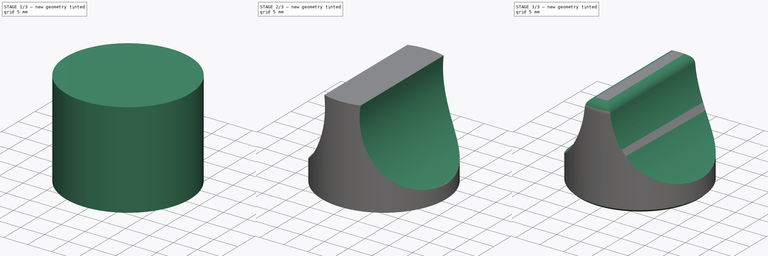
[diagram: build sequence overview — one tinted view per stage of 3, left to right]
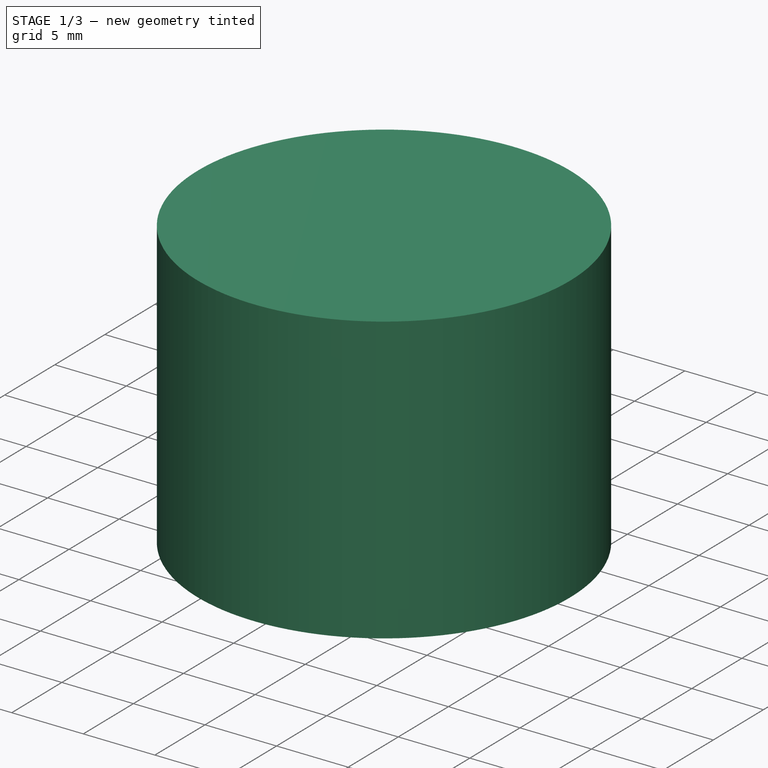
[diagram: stage 1 of 3 — iso view after this stage's code; geometry added in this stage tinted green]
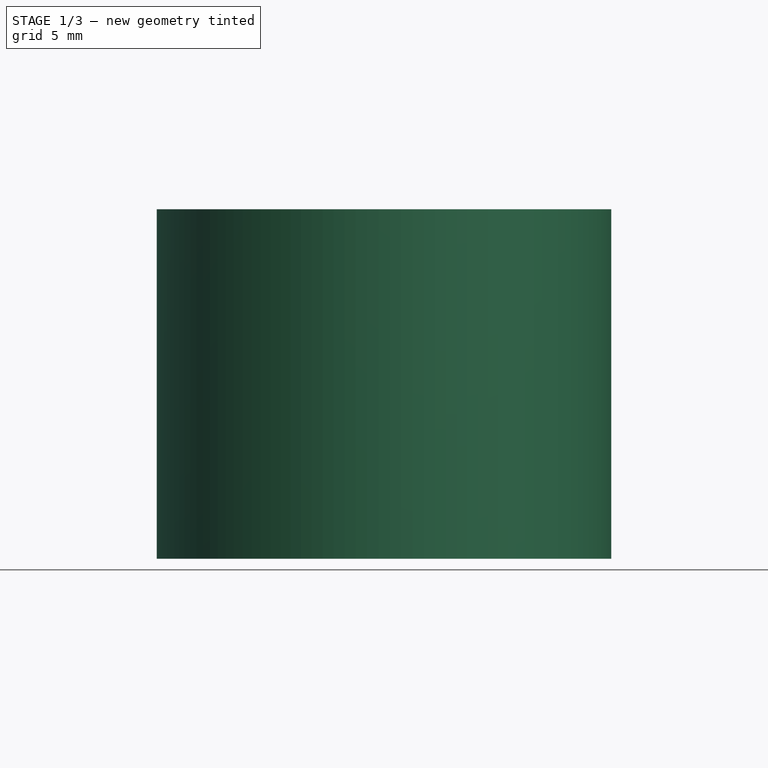
[diagram: stage 1 of 3 — front view after this stage's code; geometry added in this stage tinted green]
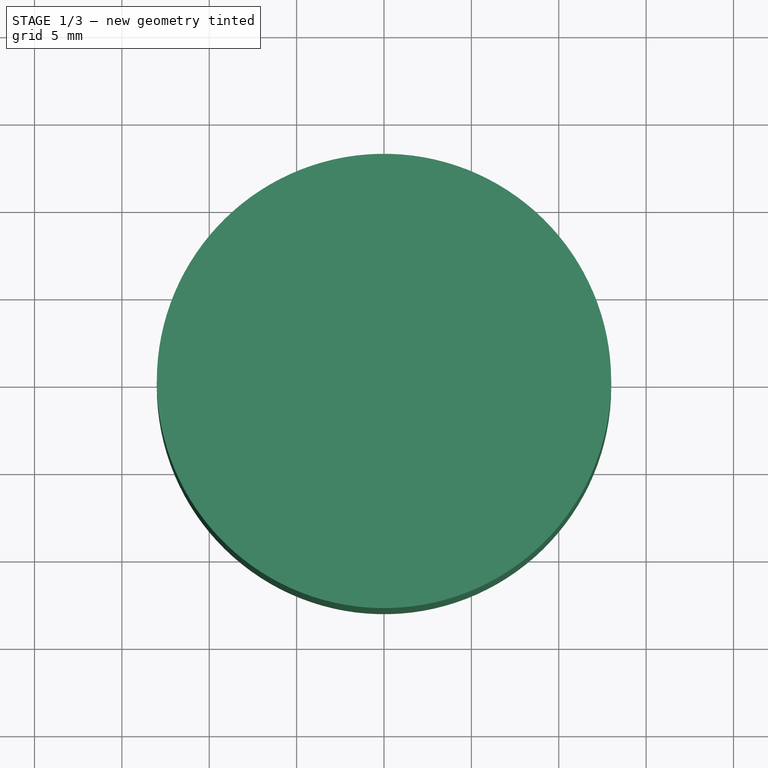
[diagram: stage 1 of 3 — top view after this stage's code; geometry added in this stage tinted green]
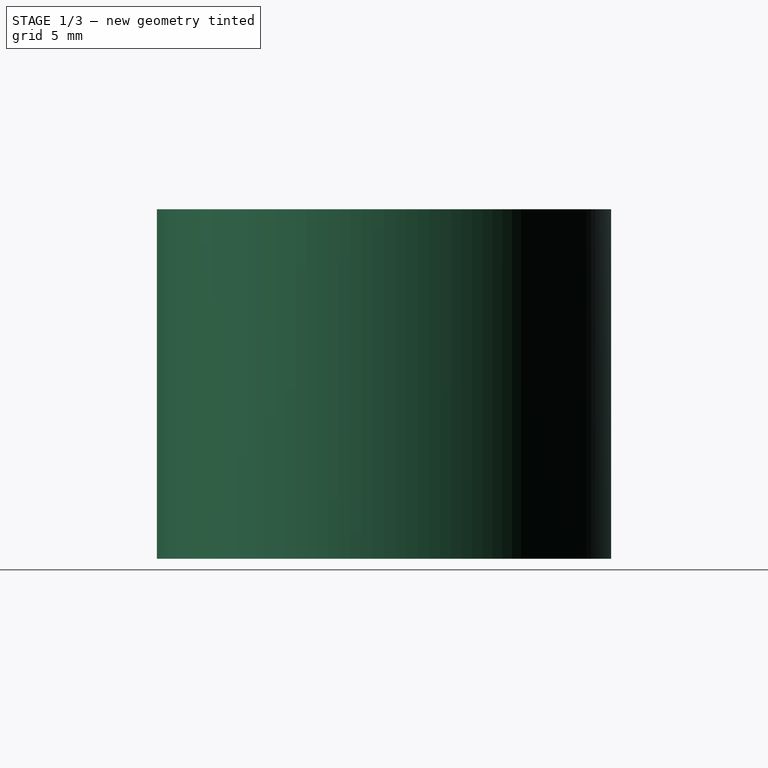
[diagram: stage 1 of 3 — right view after this stage's code; geometry added in this stage tinted green]
FCSTD DOCUMENT  (FreeCAD 2024.1R35694 (Git))
Label: vent hood knobs
License: All rights reserved
LicenseURL: http://en.wikipedia.org/wiki/All_rights_reserved
objects: Sketcher::SketchObject×3, PartDesign::Pocket×2, PartDesign::Pad×1, PartDesign::Fillet×1, PartDesign::Chamfer×1, PartDesign::Body×1
note: 14 computed .brp shape members not serialized (recipe doc carries the construction recipe); baked Part::Feature solids carry a one-line shape summary decoded from their .brp

FEATURE [Sketcher::SketchObject] Sketch
  FullyConstrained = true
  MapMode = 5
  Support = -> [XY_Plane]
  sketch-geometry (1):
    g0: Circle CenterX=0 CenterY=0 CenterZ=0 NormalX=0 NormalY=0 NormalZ=1 AngleXU=0 Radius=13
  constraints (2):
    c: Coincident(g0,g-1)
    c: Diameter(g0) = 26
FEATURE [PartDesign::Pad] Pad
  Direction = (0,0,1)
  Length = 20
  Length2 = 10
  Profile = -> Sketch
  ReferenceAxis = -> Sketch [N_Axis]
  Refine = true
  Type = 0
FEATURE [Sketcher::SketchObject] Sketch001
  FullyConstrained = true
  MapMode = 5
  Placement = pos=(0,0,0) rot=(0,1,0;3.14159rad)
  Support = -> [XY_Plane]
  sketch-geometry (23):
    g0: ArcOfCircle CenterX=0 CenterY=0 CenterZ=0 NormalX=0 NormalY=0 NormalZ=1 AngleXU=0 Radius=3.225 StartAngle=0.755909 EndAngle=2.38568
    g1: GeomPoint X=0 Y=-3.225 Z=0
    g2: GeomPoint X=-3.10403 Y=0.875 Z=0
    g3: GeomPoint X=3.10403 Y=0.875 Z=0
    g4: LineSegment StartX=-0.4 StartY=0.675 StartZ=0 EndX=0.4 EndY=0.675 EndZ=0
    g5: GeomPoint X=0 Y=0.675 Z=0
    g6: LineSegment StartX=0.614752 StartY=0.690884 StartZ=0 EndX=3.10403 EndY=0.875 EndZ=0
    g7: LineSegment StartX=-0.614752 StartY=0.690884 StartZ=0 EndX=-3.10403 EndY=0.875 EndZ=0
    g8: LineSegment StartX=0.4 StartY=0.890339 StartZ=0 EndX=0.4 EndY=1.675 EndZ=0
    g9: LineSegment StartX=0.6 StartY=1.875 StartZ=0 EndX=2.20114 EndY=1.875 EndZ=0
    g10: LineSegment StartX=-0.4 StartY=0.890339 StartZ=0 EndX=-0.4 EndY=1.675 EndZ=0
    g11: LineSegment StartX=-0.6 StartY=1.875 StartZ=0 EndX=-2.20114 EndY=1.875 EndZ=0
    g12: ArcOfCircle CenterX=0 CenterY=0 CenterZ=0 NormalX=0 NormalY=0 NormalZ=1 AngleXU=0 Radius=3.225 StartAngle=2.86683 EndAngle=6.55795
    g13: ArcOfCircle CenterX=-0.6 CenterY=0.890339 CenterZ=0 NormalX=0 NormalY=0 NormalZ=1 AngleXU=0 Radius=0.2 StartAngle=4.63856 EndAngle=6.28319
    g14: GeomPoint X=-0.4 Y=0.675 Z=0
    g15: ArcOfCircle CenterX=-0.6 CenterY=1.675 CenterZ=0 NormalX=0 NormalY=0 NormalZ=1 AngleXU=0 Radius=0.2 StartAngle=0 EndAngle=1.5708
    g16: GeomPoint X=-0.4 Y=1.875 Z=0
    g17: ArcOfCircle CenterX=0.6 CenterY=1.675 CenterZ=0 NormalX=0 NormalY=0 NormalZ=1 AngleXU=0 Radius=0.2 StartAngle=1.5708 EndAngle=3.14159
    g18: GeomPoint X=0.4 Y=1.875 Z=0
    g19: ArcOfCircle CenterX=0.6 CenterY=0.890339 CenterZ=0 NormalX=0 NormalY=0 NormalZ=1 AngleXU=0 Radius=0.2 StartAngle=3.14159 EndAngle=4.78622
    g20: GeomPoint X=0.4 Y=0.675 Z=0
    g21: ArcOfCircle CenterX=2.20114 CenterY=2.075 CenterZ=0 NormalX=0 NormalY=0 NormalZ=1 AngleXU=0 Radius=0.2 StartAngle=4.71239 EndAngle=7.03909
    g22: ArcOfCircle CenterX=-2.20114 CenterY=2.075 CenterZ=0 NormalX=0 NormalY=0 NormalZ=1 AngleXU=0 Radius=0.2 StartAngle=2.38568 EndAngle=4.71239
  constraints (52):
    c: PointOnObject(g1,g0)
    c: Vertical(g0,g1)
    c: PointOnObject(g2,g0)
    c: Horizontal(g3,g2)
    c: DistanceY(g1,g2) = 4.1
    c: Horizontal(g4)
    c: DistanceY(g1,g4) = 3.9
    c: Symmetric(g4,g4,g5)
    c: Vertical(g5,g0)
    c: DistanceX(g4,g4) = 0.8
    c: Coincident(g20,g4)
    c: Coincident(g6,g3)
    c: Coincident(g14,g4)
    c: Coincident(g7,g2)
    c: Vertical(g8)
    c: Horizontal(g9)
    c: Vertical(g10)
    c: Horizontal(g11)
    c: Horizontal(g16,g18)
    c: DistanceY(g20,g18) = 1.2
    c: Coincident(g12,g6)
    c: Equal(g0,g12)
    c: PointOnObject(g12,g7)
    c: Coincident(g0,g12)
    c: Diameter(g12) = 6.45
    c: PointOnObject(g14,g7)
    c: PointOnObject(g14,g10)
    c: Tangent(g7,g13) = 1.5708
    c: Tangent(g10,g13) = -1.5708
    c: PointOnObject(g16,g10)
    c: PointOnObject(g16,g11)
    c: Tangent(g10,g15) = -1.5708
    c: Tangent(g11,g15) = -1.5708
    c: PointOnObject(g18,g9)
    c: PointOnObject(g18,g8)
    c: Tangent(g9,g17) = 1.5708
    c: Tangent(g8,g17) = 1.5708
    c: PointOnObject(g20,g8)
    c: PointOnObject(g20,g6)
    c: Tangent(g8,g19) = 1.5708
    c: Tangent(g6,g19) = -1.5708
    c: Tangent(g9,g21) = -1.5708
    c: Tangent(g0,g21) = -1.5708
    c: Tangent(g11,g22) = 1.5708
    c: Tangent(g0,g22) = -1.5708
    c: Radius(g21) = 0.2
    c: Equal(g21,g22)
    c: Equal(g22,g15)
    c: Equal(g15,g17)
    c: Equal(g13,g15)
    c: Equal(g13,g19)
    c: Coincident(g0,g-1)
FEATURE [PartDesign::Pocket] Pocket
  BaseFeature = -> Pad
  Direction = (0,0,1)
  Length = 15
  Length2 = 5
  Profile = -> Sketch001
  ReferenceAxis = -> Sketch001 [N_Axis]
  Refine = true
  Type = 0
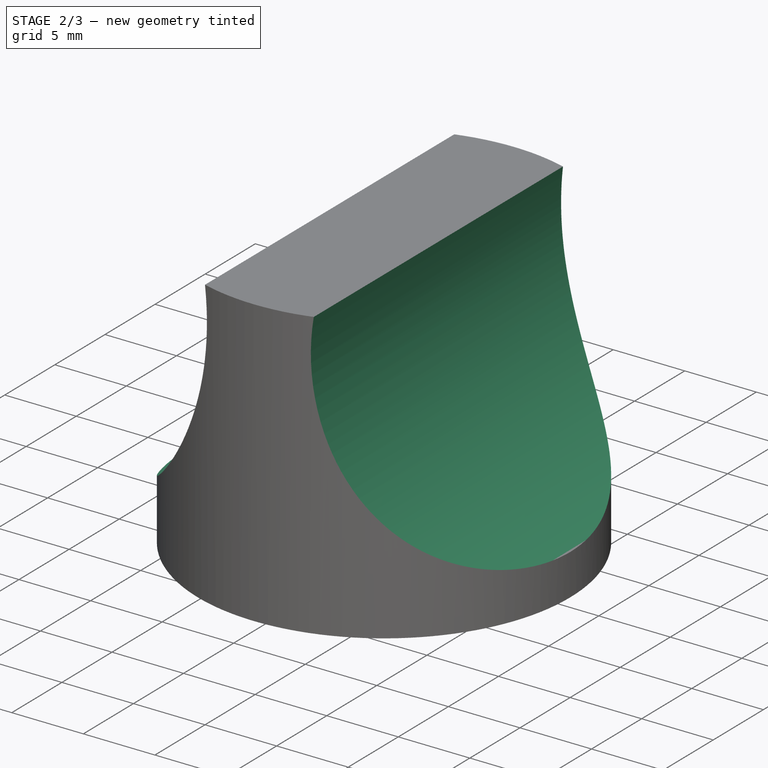
[diagram: stage 2 of 3 — iso view after this stage's code; geometry added in this stage tinted green]
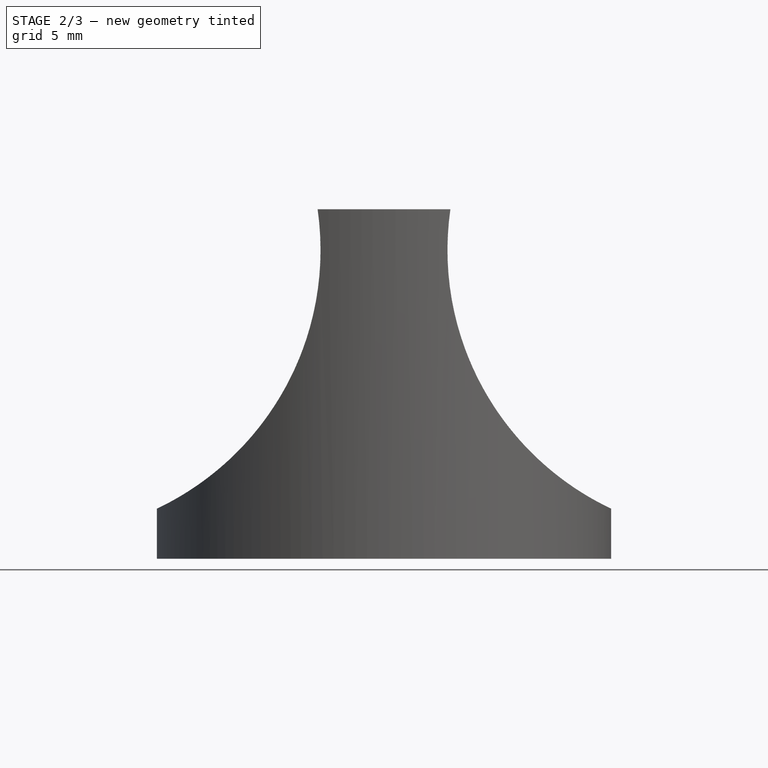
[diagram: stage 2 of 3 — front view after this stage's code; geometry added in this stage tinted green]
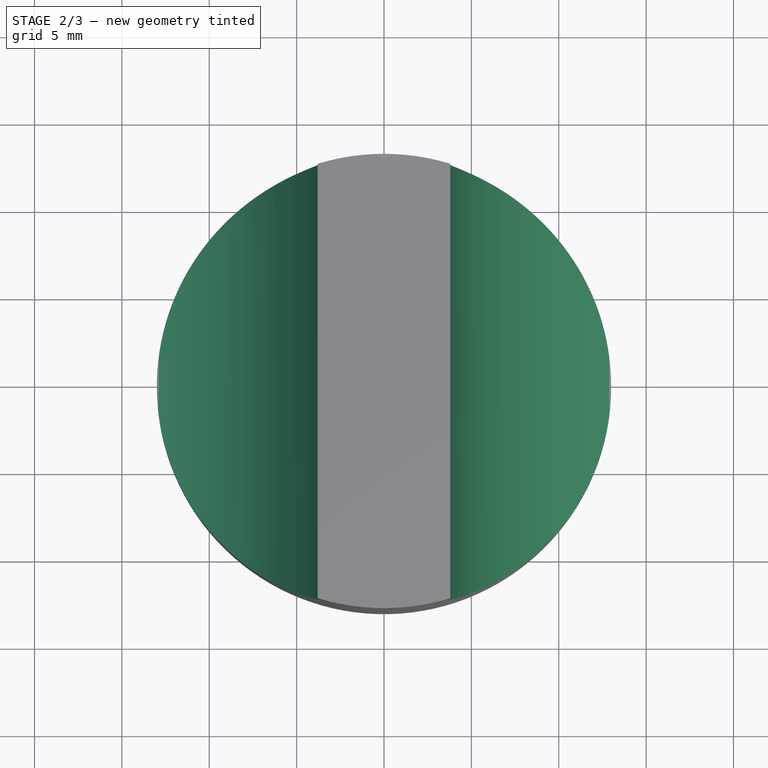
[diagram: stage 2 of 3 — top view after this stage's code; geometry added in this stage tinted green]
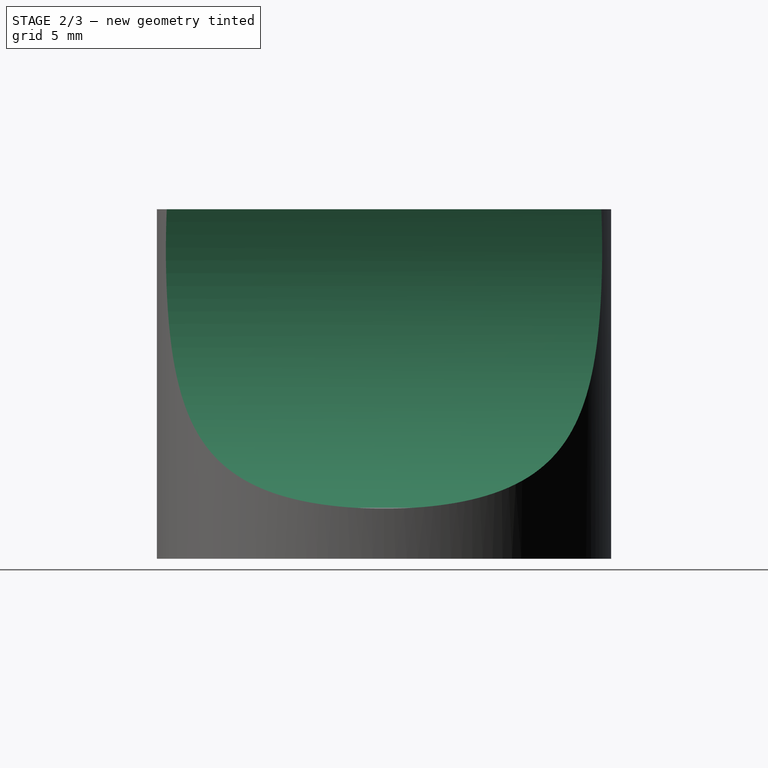
[diagram: stage 2 of 3 — right view after this stage's code; geometry added in this stage tinted green]
FEATURE [Sketcher::SketchObject] Sketch002
  AttachmentOffset = pos=(0,0,-15) rot=(0,0,1;0rad)
  FullyConstrained = false
  MapMode = 5
  Placement = pos=(0,15,-3.3e-15) rot=(1,0,0;1.5708rad)
  Support = -> [XZ_Plane]
  sketch-geometry (2):
    g0: Circle CenterX=20 CenterY=17.662 CenterZ=0 NormalX=0 NormalY=0 NormalZ=1 AngleXU=0 Radius=16.3684
    g1: Circle CenterX=-20 CenterY=17.662 CenterZ=0 NormalX=0 NormalY=0 NormalZ=1 AngleXU=0 Radius=16.3684
  constraints (2):
    c: Equal(g0,g1)
    c: Symmetric(g0,g1,g-2)
FEATURE [PartDesign::Pocket] Pocket001
  BaseFeature = -> Pocket
  Direction = (0,1,-2e-16)
  Length = 5
  Length2 = 5
  Profile = -> Sketch002
  ReferenceAxis = -> Sketch002 [N_Axis]
  Refine = true
  Reversed = true
  Type = 1
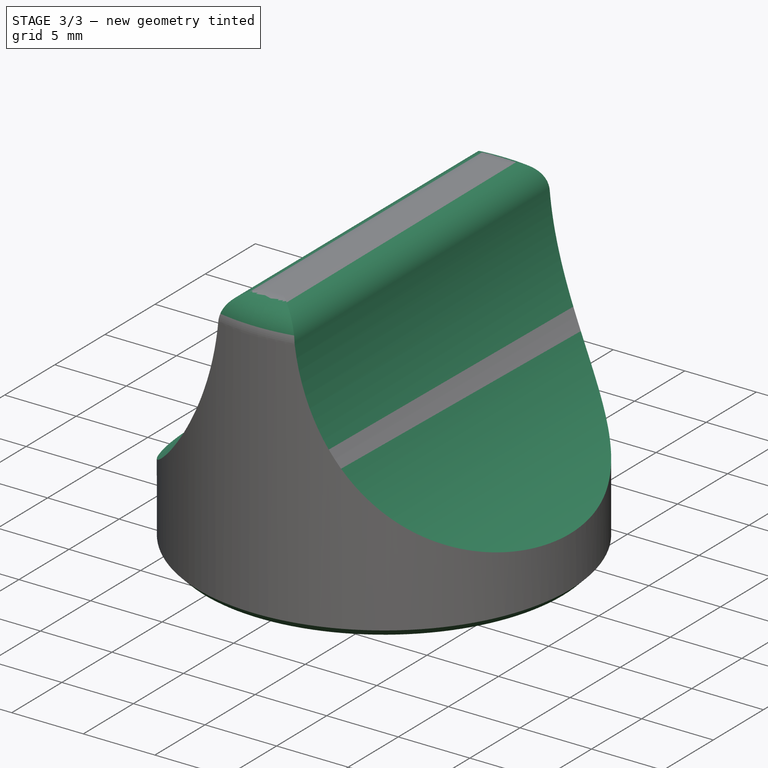
[diagram: stage 3 of 3 — iso view after this stage's code; geometry added in this stage tinted green]
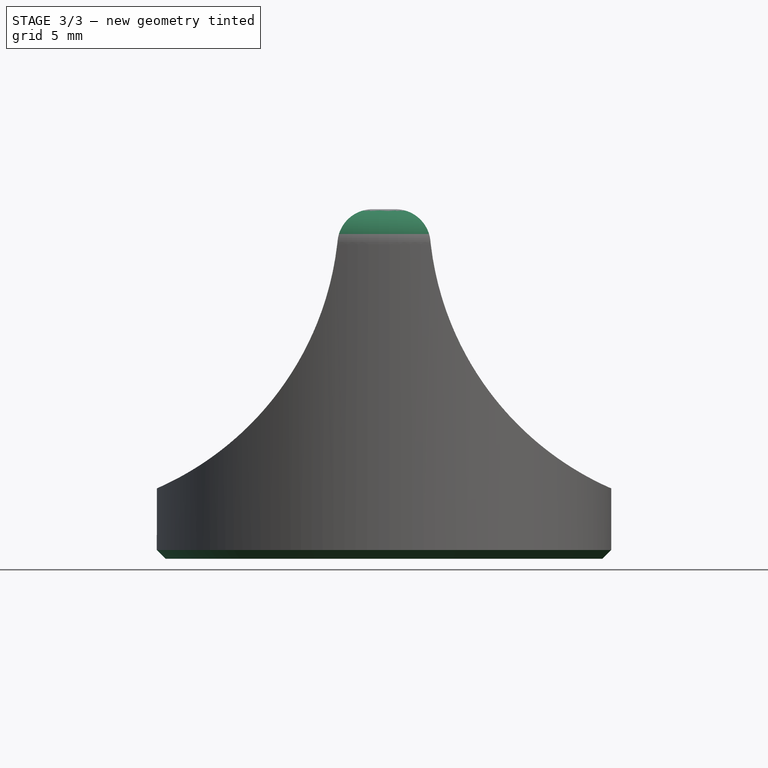
[diagram: stage 3 of 3 — front view after this stage's code; geometry added in this stage tinted green]
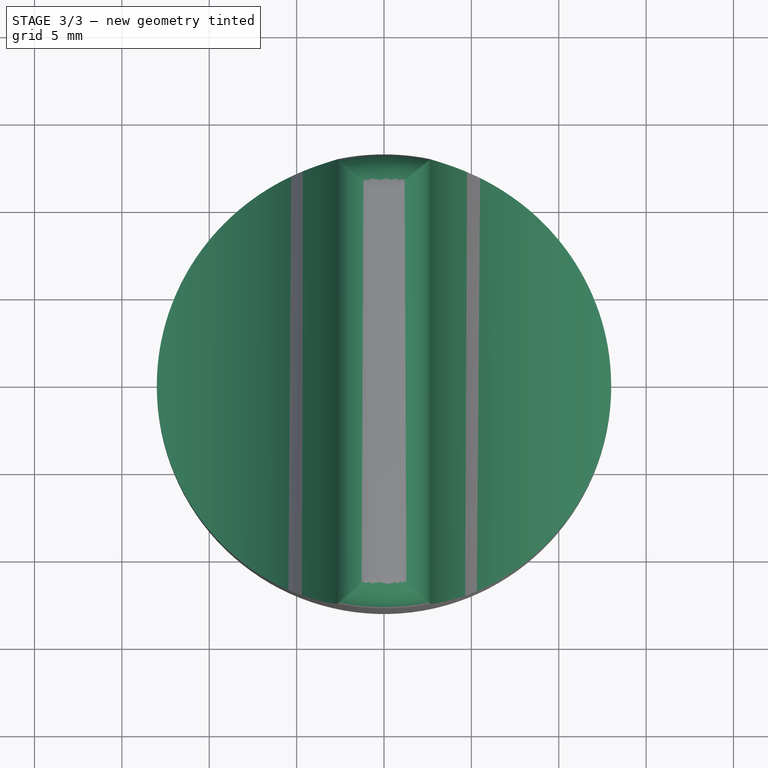
[diagram: stage 3 of 3 — top view after this stage's code; geometry added in this stage tinted green]
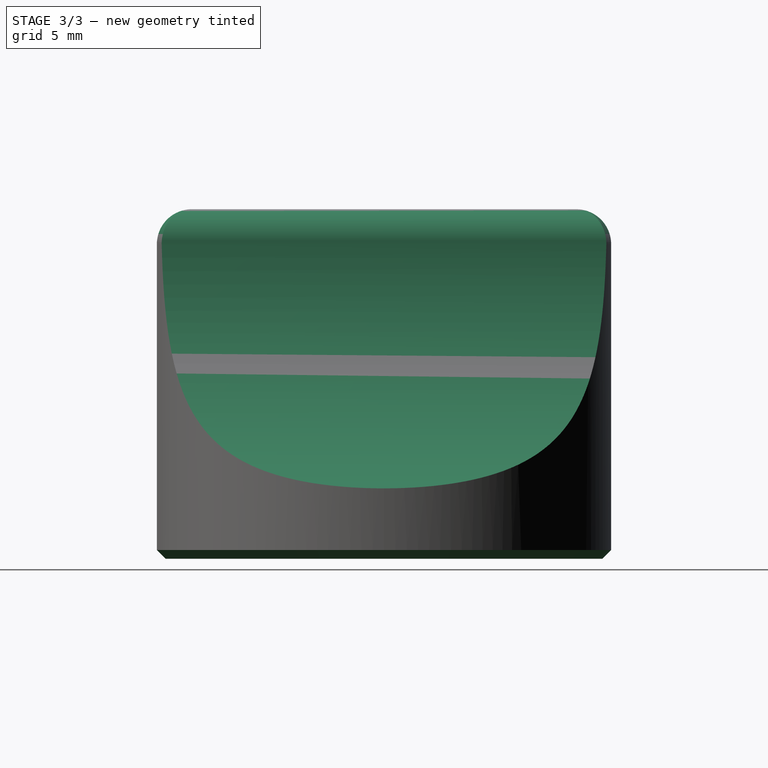
[diagram: stage 3 of 3 — right view after this stage's code; geometry added in this stage tinted green]
FEATURE [PartDesign::Fillet] Fillet
  Base = -> Pocket001 [Face4]
  BaseFeature = -> Pocket001
  Radius = 2
  Refine = true
  SupportTransform = false
  UseAllEdges = false
FEATURE [PartDesign::Chamfer] Chamfer
  Angle = 45
  Base = -> Fillet [Edge5,Edge21]
  BaseFeature = -> Fillet
  ChamferType = 0
  FlipDirection = false
  Refine = true
  Size = 0.5
  Size2 = 1
  SupportTransform = false
  UseAllEdges = false
FEATURE [PartDesign::Body] Body
  Group = -> [Sketch,Pad,Sketch001,Pocket,Sketch002,Pocket001,Fillet,Chamfer]
  Origin = -> Origin
  Tip = -> Chamfer
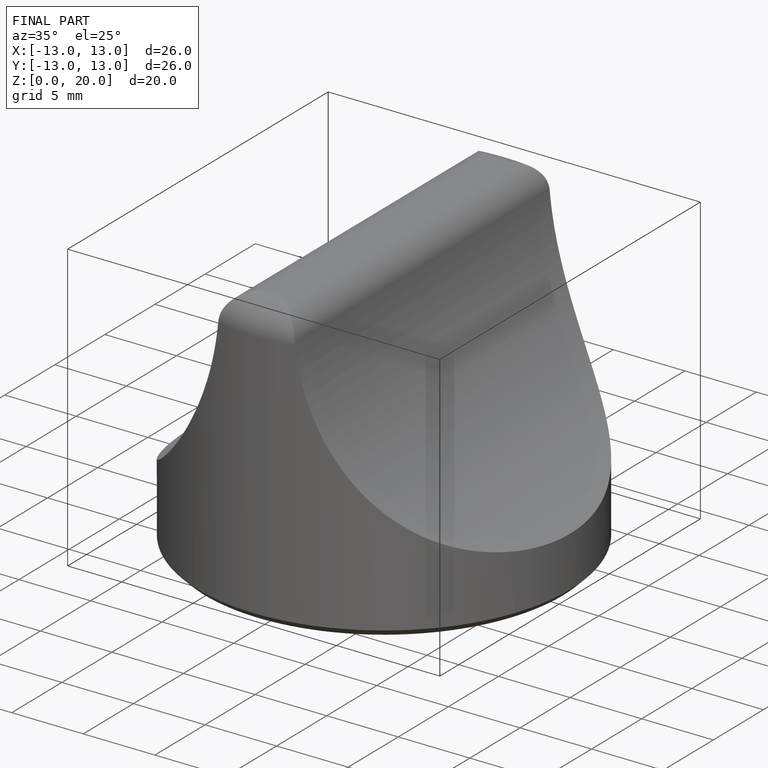
[diagram: finished part — iso view with bounding-box wireframe]
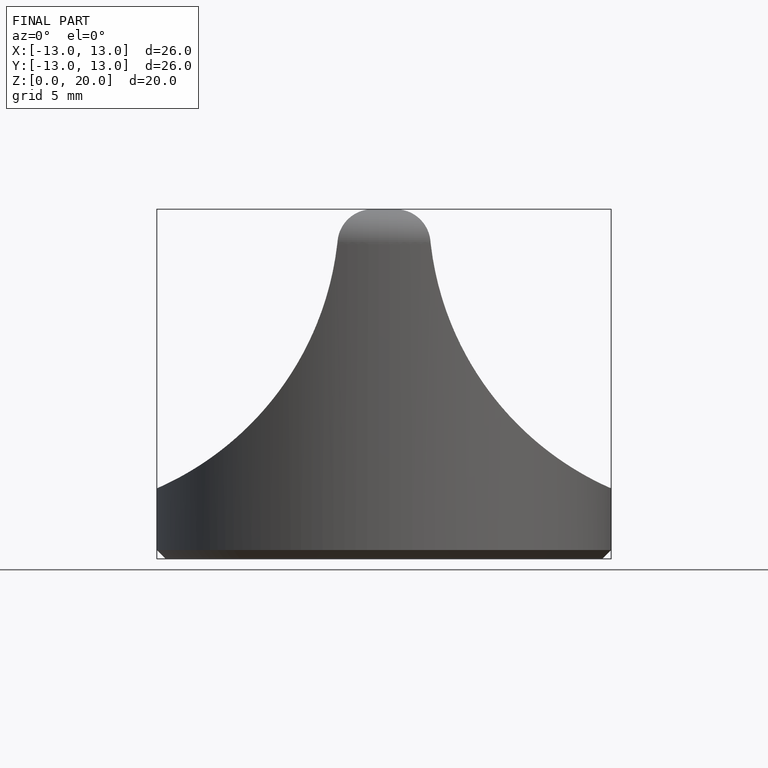
[diagram: finished part — front view with bounding-box wireframe]
